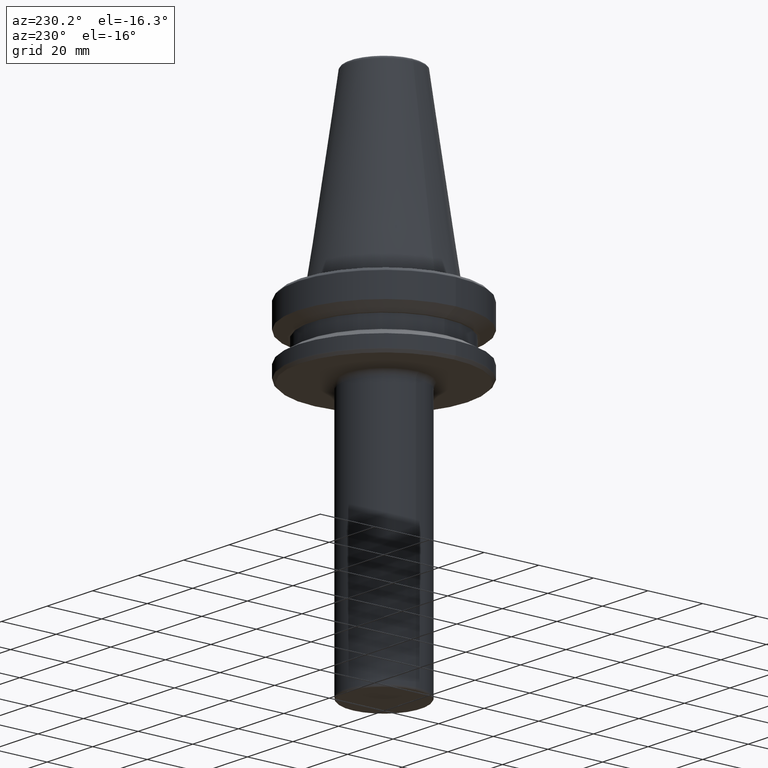
[diagram: clean part render]
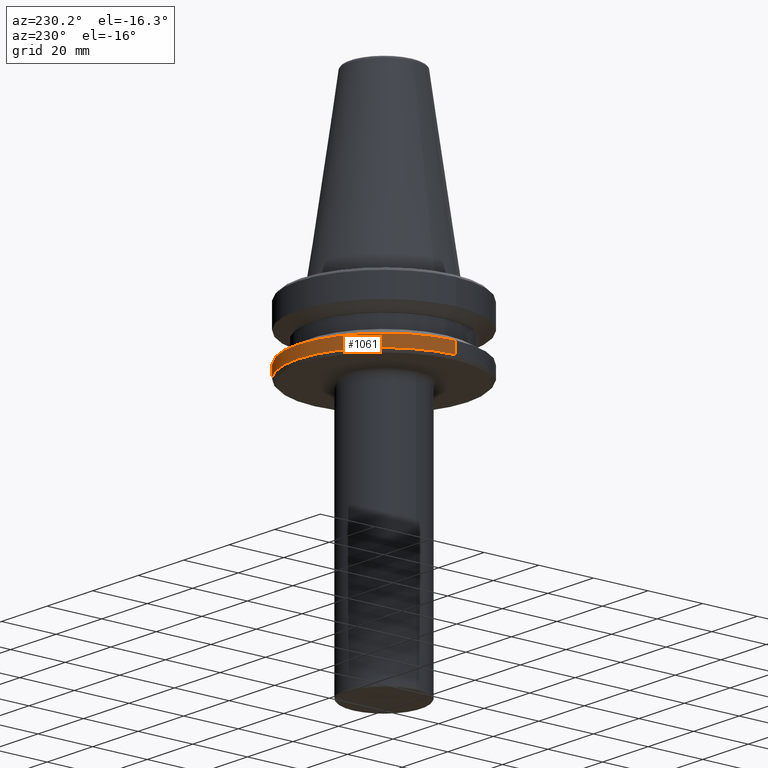
[diagram: same view with one face highlighted and labeled with its STEP entity id]
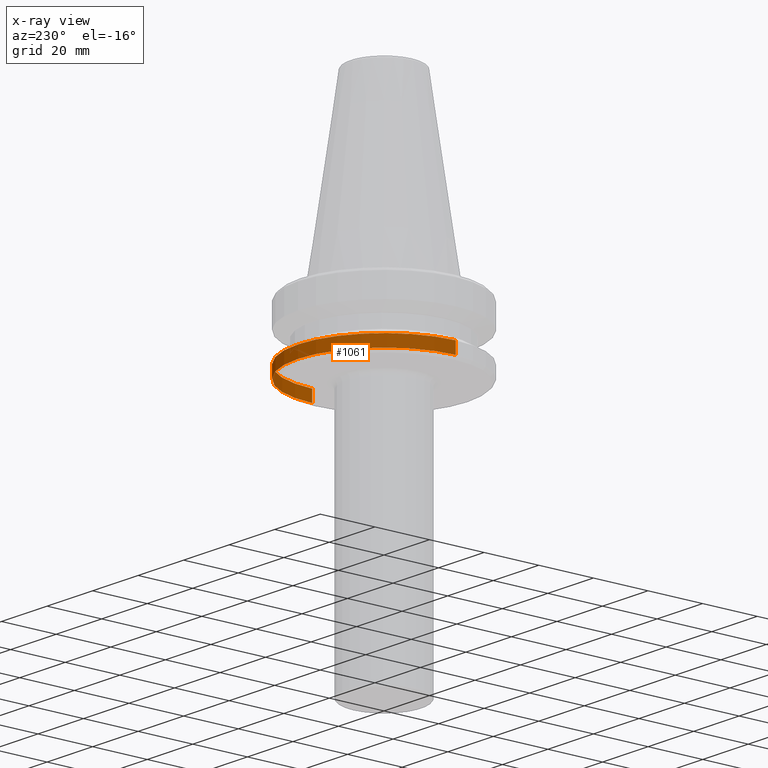
[diagram: x-ray of the same camera — body ghosted, the highlighted face saturated]
A machine part, auxiliary view. The second image highlights one B-rep face of the part: STEP entity #1061.
The next image is the same camera in x-ray: the body ghosted, the highlighted face saturated — about 0% of this face is hidden behind the body in this view.
In plain terms, the highlighted cylindrical surface (partial cylindrical patch) has radius 31.5 mm, axis along (-0, -0, -1).
Its self-contained STEP definition (entity closure, byte-faithful):
#17 = DIRECTION ( 'NONE',  ( -0.0000000000000000000, -0.0000000000000000000, -1.000000000000000000 ) ) ;
#29 = EDGE_CURVE ( 'NONE', #1042, #45, #1032, .T. ) ;
#41 = CARTESIAN_POINT ( 'NONE',  ( 0.0000000000000000000, 0.0000000000000000000, -25.83431457505076200 ) ) ;
#45 = VERTEX_POINT ( 'NONE', #304 ) ;
#77 = DIRECTION ( 'NONE',  ( -1.000000000000000000, 0.0000000000000000000, 0.0000000000000000000 ) ) ;
#105 = AXIS2_PLACEMENT_3D ( 'NONE', #41, #645, #1195 ) ;
#112 = ORIENTED_EDGE ( 'NONE', *, *, #29, .T. ) ;
#139 = VERTEX_POINT ( 'NONE', #620 ) ;
#165 = AXIS2_PLACEMENT_3D ( 'NONE', #1197, #587, #77 ) ;
#186 = CARTESIAN_POINT ( 'NONE',  ( -31.50000000000000000, 0.0000000000000000000, 0.0000000000000000000 ) ) ;
#189 = EDGE_CURVE ( 'NONE', #139, #929, #926, .T. ) ;
#251 = EDGE_CURVE ( 'NONE', #929, #45, #865, .T. ) ;
#254 = EDGE_CURVE ( 'NONE', #139, #1042, #833, .T. ) ;
#304 = CARTESIAN_POINT ( 'NONE',  ( 31.50000000000000000, 3.857637417314161900E-015, -25.83431457505076200 ) ) ;
#416 = DIRECTION ( 'NONE',  ( -1.000000000000000000, 0.0000000000000000000, 0.0000000000000000000 ) ) ;
#483 = CARTESIAN_POINT ( 'NONE',  ( -31.50000000000000000, 0.0000000000000000000, -25.83431457505076200 ) ) ;
#491 = CARTESIAN_POINT ( 'NONE',  ( 31.50000000000000000, 3.857637417314162700E-015, 0.0000000000000000000 ) ) ;
#512 = CYLINDRICAL_SURFACE ( 'NONE', #963, 31.50000000000000000 ) ;
#514 = FACE_OUTER_BOUND ( 'NONE', #847, .T. ) ;
#587 = DIRECTION ( 'NONE',  ( -0.0000000000000000000, -0.0000000000000000000, -1.000000000000000000 ) ) ;
#598 = CARTESIAN_POINT ( 'NONE',  ( 31.50000000000000700, 3.857637417314163500E-015, -21.59985333118215700 ) ) ;
#620 = CARTESIAN_POINT ( 'NONE',  ( -31.50000000000000700, 0.0000000000000000000, -21.59985333118215700 ) ) ;
#645 = DIRECTION ( 'NONE',  ( -0.0000000000000000000, -0.0000000000000000000, -1.000000000000000000 ) ) ;
#805 = ORIENTED_EDGE ( 'NONE', *, *, #254, .T. ) ;
#807 = DIRECTION ( 'NONE',  ( -0.0000000000000000000, -0.0000000000000000000, -1.000000000000000000 ) ) ;
#833 = CIRCLE ( 'NONE', #165, 31.50000000000000700 ) ;
#847 = EDGE_LOOP ( 'NONE', ( #805, #112, #1047, #1131 ) ) ;
#865 = CIRCLE ( 'NONE', #105, 31.50000000000000000 ) ;
#890 = VECTOR ( 'NONE', #17, 1000.000000000000000 ) ;
#896 = DIRECTION ( 'NONE',  ( -0.0000000000000000000, -0.0000000000000000000, -1.000000000000000000 ) ) ;
#926 = LINE ( 'NONE', #186, #890 ) ;
#929 = VERTEX_POINT ( 'NONE', #483 ) ;
#963 = AXIS2_PLACEMENT_3D ( 'NONE', #1019, #807, #416 ) ;
#1019 = CARTESIAN_POINT ( 'NONE',  ( 0.0000000000000000000, 0.0000000000000000000, 0.0000000000000000000 ) ) ;
#1030 = VECTOR ( 'NONE', #896, 1000.000000000000000 ) ;
#1032 = LINE ( 'NONE', #491, #1030 ) ;
#1042 = VERTEX_POINT ( 'NONE', #598 ) ;
#1047 = ORIENTED_EDGE ( 'NONE', *, *, #251, .F. ) ;
#1061 = ADVANCED_FACE ( 'NONE', ( #514 ), #512, .T. ) ;
#1131 = ORIENTED_EDGE ( 'NONE', *, *, #189, .F. ) ;
#1195 = DIRECTION ( 'NONE',  ( -1.000000000000000000, 0.0000000000000000000, 0.0000000000000000000 ) ) ;
#1197 = CARTESIAN_POINT ( 'NONE',  ( 0.0000000000000000000, 0.0000000000000000000, -21.59985333118215700 ) ) ;